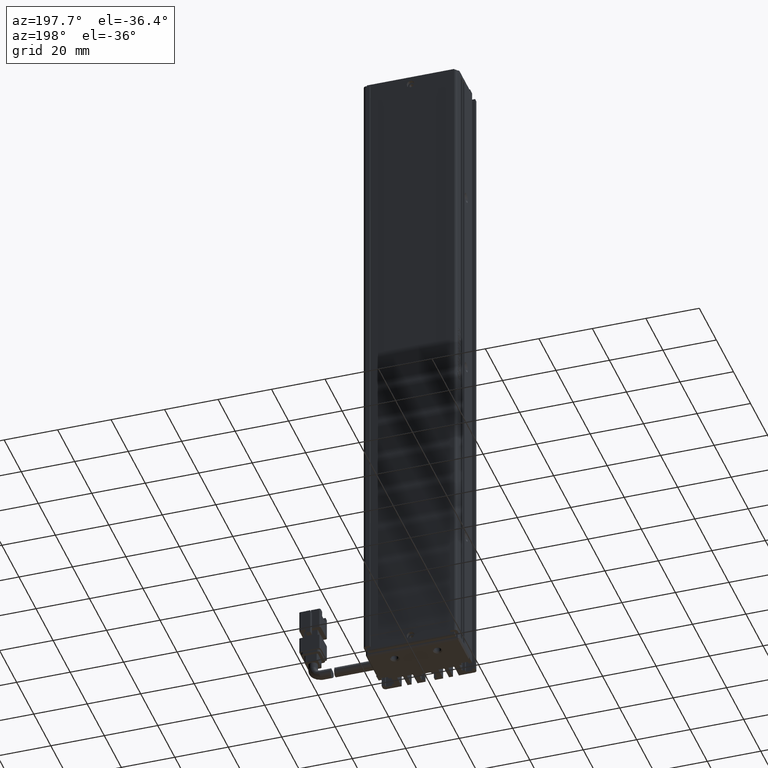
[diagram: clean part render]
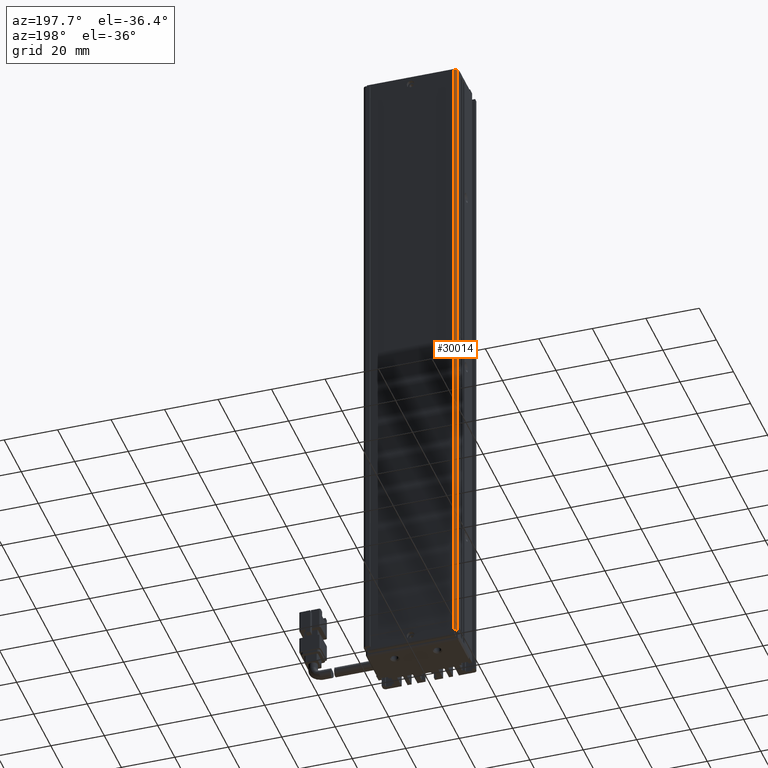
[diagram: same view with one face highlighted and labeled with its STEP entity id]
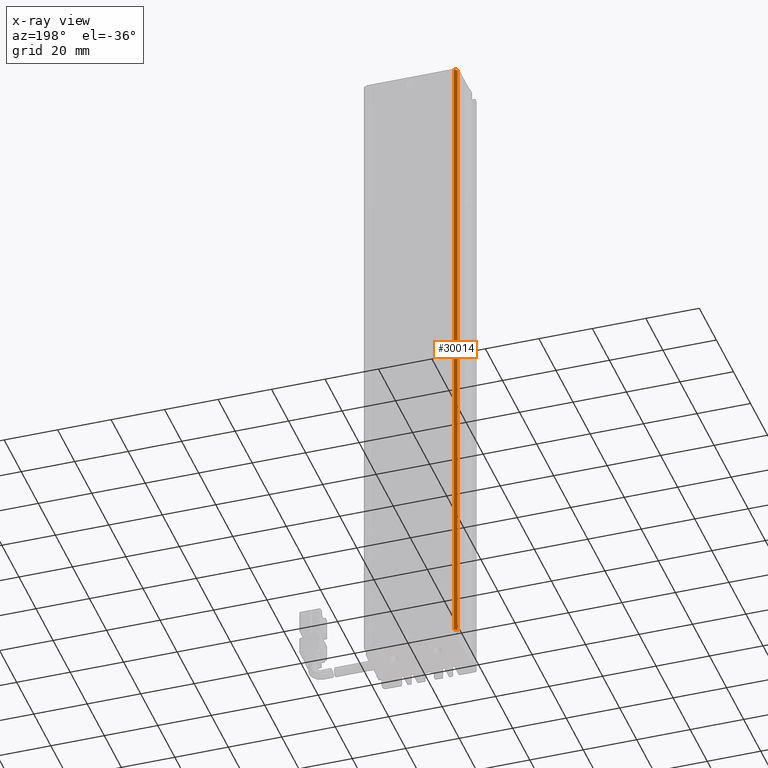
[diagram: x-ray of the same camera — body ghosted, the highlighted face saturated]
A machine part, auxiliary view. The second image highlights one B-rep face of the part: STEP entity #30014.
The next image is the same camera in x-ray: the body ghosted, the highlighted face saturated — about 0% of this face is hidden behind the body in this view.
In plain terms, the highlighted cylindrical surface (edge-blend (fillet) strip) has radius 1 mm, axis along (0, 0, -1).
Its self-contained STEP definition (entity closure, byte-faithful):
#1937 = ORIENTED_EDGE ( 'NONE', *, *, #74345, .T. ) ;
#14183 = EDGE_CURVE ( 'NONE', #43124, #70113, #52463, .T. ) ;
#19426 = ORIENTED_EDGE ( 'NONE', *, *, #85038, .T. ) ;
#19552 = CARTESIAN_POINT ( 'NONE',  ( 24.42537974683542500, 34.99073232304837000, -239.0000000000000000 ) ) ;
#23429 = EDGE_CURVE ( 'NONE', #42510, #54163, #76010, .T. ) ;
#28471 = AXIS2_PLACEMENT_3D ( 'NONE', #73060, #35862, #88092 ) ;
#28948 = CIRCLE ( 'NONE', #84808, 0.9999999999999974500 ) ;
#30014 = ADVANCED_FACE ( 'NONE', ( #39779 ), #94678, .T. ) ;
#33061 = DIRECTION ( 'NONE',  ( -0.0000000000000000000, -0.0000000000000000000, -1.000000000000000000 ) ) ;
#33321 = ORIENTED_EDGE ( 'NONE', *, *, #14183, .F. ) ;
#35352 = DIRECTION ( 'NONE',  ( 0.0000000000000000000, 0.0000000000000000000, -1.000000000000000000 ) ) ;
#35862 = DIRECTION ( 'NONE',  ( 0.0000000000000000000, 0.0000000000000000000, -1.000000000000000000 ) ) ;
#39779 = FACE_OUTER_BOUND ( 'NONE', #65159, .T. ) ;
#42510 = VERTEX_POINT ( 'NONE', #87638 ) ;
#43124 = VERTEX_POINT ( 'NONE', #75700 ) ;
#46380 = AXIS2_PLACEMENT_3D ( 'NONE', #53045, #52725, #75509 ) ;
#51369 = VECTOR ( 'NONE', #33061, 1000.000000000000000 ) ;
#52463 = LINE ( 'NONE', #84994, #51369 ) ;
#52725 = DIRECTION ( 'NONE',  ( -0.0000000000000000000, -0.0000000000000000000, 1.000000000000000000 ) ) ;
#53045 = CARTESIAN_POINT ( 'NONE',  ( 24.42537974683542900, 33.99073232304837700, -239.0000000000000000 ) ) ;
#54163 = VERTEX_POINT ( 'NONE', #19552 ) ;
#60879 = VECTOR ( 'NONE', #35352, 1000.000000000000000 ) ;
#65129 = CARTESIAN_POINT ( 'NONE',  ( 23.42537974683542500, 33.99073232304837700, -239.0000000000000000 ) ) ;
#65159 = EDGE_LOOP ( 'NONE', ( #1937, #33321, #19426, #70046 ) ) ;
#70046 = ORIENTED_EDGE ( 'NONE', *, *, #23429, .T. ) ;
#70113 = VERTEX_POINT ( 'NONE', #65129 ) ;
#71354 = DIRECTION ( 'NONE',  ( -1.000000000000000000, 0.0000000000000000000, 0.0000000000000000000 ) ) ;
#71418 = CIRCLE ( 'NONE', #46380, 0.9999999999999974500 ) ;
#72884 = CARTESIAN_POINT ( 'NONE',  ( 24.42537974683542900, 34.99073232304837700, 10.99999999999999600 ) ) ;
#73060 = CARTESIAN_POINT ( 'NONE',  ( 24.42537974683542900, 33.99073232304837700, 10.99999999999999600 ) ) ;
#74345 = EDGE_CURVE ( 'NONE', #54163, #70113, #71418, .T. ) ;
#75509 = DIRECTION ( 'NONE',  ( -1.000000000000000000, 0.0000000000000000000, 0.0000000000000000000 ) ) ;
#75700 = CARTESIAN_POINT ( 'NONE',  ( 23.42537974683542500, 33.99073232304837700, 8.999999999999994700 ) ) ;
#76010 = LINE ( 'NONE', #72884, #60879 ) ;
#76924 = CARTESIAN_POINT ( 'NONE',  ( 24.42537974683542900, 33.99073232304837700, 8.999999999999994700 ) ) ;
#78559 = DIRECTION ( 'NONE',  ( 0.0000000000000000000, 0.0000000000000000000, -1.000000000000000000 ) ) ;
#84808 = AXIS2_PLACEMENT_3D ( 'NONE', #76924, #78559, #71354 ) ;
#84994 = CARTESIAN_POINT ( 'NONE',  ( 23.42537974683542500, 33.99073232304837700, 10.99999999999999600 ) ) ;
#85038 = EDGE_CURVE ( 'NONE', #43124, #42510, #28948, .T. ) ;
#87638 = CARTESIAN_POINT ( 'NONE',  ( 24.42537974683542500, 34.99073232304837000, 8.999999999999994700 ) ) ;
#88092 = DIRECTION ( 'NONE',  ( -1.000000000000000000, 0.0000000000000000000, 0.0000000000000000000 ) ) ;
#94678 = CYLINDRICAL_SURFACE ( 'NONE', #28471, 0.9999999999999974500 ) ;